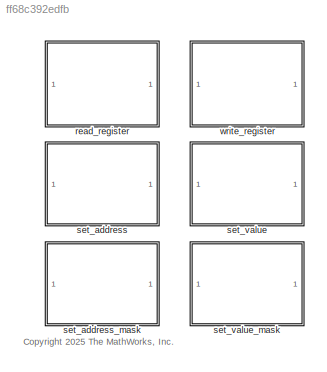
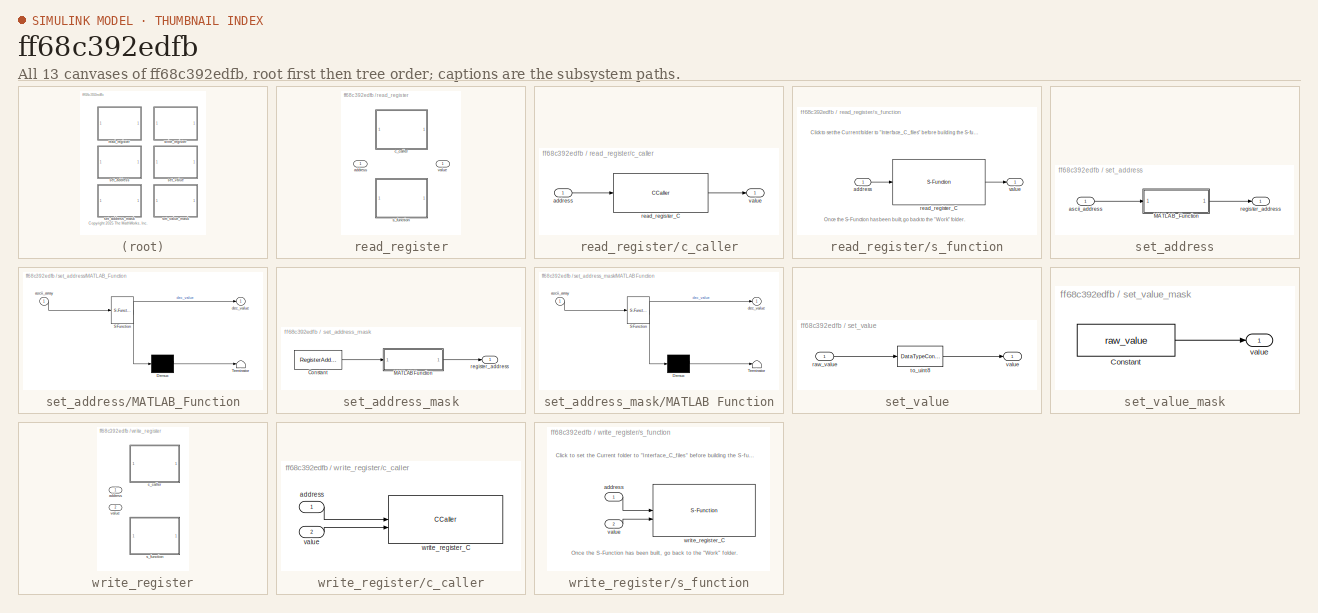
[diagram: thumbnail index - all 13 canvases of the model, root first then tree order]
MODEL slx_ff68c392edfb
KIND library
CONFIG AbsTol = auto
CONFIG EnableMultiTasking = off
CONFIG FixedStep = auto
CONFIG MaxStep = auto
CONFIG MinStep = auto
CONFIG RelTol = 1e-3
CONFIG SampleTimeConstraint = Unconstrained
CONFIG SolverName = VariableStepAuto
CONFIG StartTime = 0.0
CONFIG StopTime = 10.0
BLOCK [SubSystem] read_register
  Variant = on
  VariantControl = Variant1
BLOCK [Outport] read_register/ value
  VectorParamsAs1DForOutWhenUnconnected = off
BLOCK [Inport] read_register/address 
BLOCK [SubSystem] read_register/c_caller
  VariantControl = SRC
BLOCK [Inport] read_register/c_caller/address
BLOCK [CCaller] read_register/c_caller/read_register_C
  FunctionName = read_register
  PortSpecificationStruct = %)30     .    R ,   8    (     @         %    "     (    !     0         %  0 "0    $    _    07)G3F%M90  4&]R=$YA;64 4V-O<&4     26YD97@     5'EP90      4VEZ90      27-';&]B86P   X    P    !@    @    $          4    (     0    ,    !         !   P!O=70 #@   #     &    "     0         !0    @    !     P    $         $  # &]U=  .    .     8    (    !          %    "     $    &     0         0    !@...<+904ch>
BLOCK [Outport] read_register/c_caller/value
  VectorParamsAs1DForOutWhenUnconnected = off
BLOCK [SubSystem] read_register/s_function
  VariantControl = MEX
BLOCK [Inport] read_register/s_function/address
BLOCK [S-Function] read_register/s_function/read_register_C
  CopyFcn = set_param(gcbh,'LinkStatus','none')
  EnableBusSupport = off
  FunctionName = read_register
  InitFcn = try, set_param(gcb,'FunctionName','read_register'), end
  OpenFcn = sfunctionwizard(gcbh)
  PreSaveFcn = try, set_param(gcb,'FunctionName','read_register'), end
  SFcnIsStateOwnerBlock = off
  SFunctionDeploymentMode = off
  SFunctionModules = read_register_wrapper.c ParkingMeterMemory
BLOCK [Outport] read_register/s_function/value
  VectorParamsAs1DForOutWhenUnconnected = off
BLOCK [SubSystem] set_address
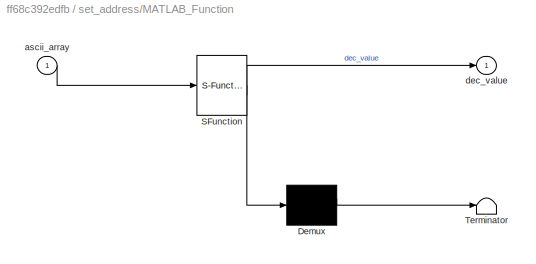
BLOCK [SubSystem] set_address/MATLAB_Function
  ErrorFcn = Stateflow.Translate.translate
  PermitHierarchicalResolution = ExplicitOnly
  SFBlockType = MATLAB Function
  TreatAsAtomicUnit = on
BLOCK [Demux] set_address/MATLAB_Function/ Demux 
  Outputs = 1
BLOCK [S-Function] set_address/MATLAB_Function/ SFunction 
  EnableBusSupport = off
  FunctionName = sf_sfun
  PortCounts = [1 2]
  SFcnIsStateOwnerBlock = off
  SFunctionDeploymentMode = off
  Tag = Stateflow S-Function 3
BLOCK [Terminator] set_address/MATLAB_Function/ Terminator 
BLOCK [Inport] set_address/MATLAB_Function/ascii_array
BLOCK [Outport] set_address/MATLAB_Function/dec_value
  VectorParamsAs1DForOutWhenUnconnected = off
BLOCK [Inport] set_address/ascii_address
  OutDataTypeStr = uint8
BLOCK [Outport] set_address/register_address
  VectorParamsAs1DForOutWhenUnconnected = off
BLOCK [SubSystem] set_address_mask
BLOCK [Constant] set_address_mask/Constant
  OutDataTypeStr = uint8
  Value = RegisterAddress
  VectorParams1D = off
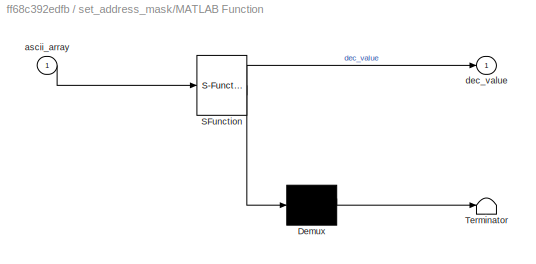
BLOCK [SubSystem] set_address_mask/MATLAB Function
  ErrorFcn = Stateflow.Translate.translate
  PermitHierarchicalResolution = ExplicitOnly
  SFBlockType = MATLAB Function
  TreatAsAtomicUnit = on
BLOCK [Demux] set_address_mask/MATLAB Function/ Demux 
  Outputs = 1
BLOCK [S-Function] set_address_mask/MATLAB Function/ SFunction 
  EnableBusSupport = off
  FunctionName = sf_sfun
  PortCounts = [1 2]
  SFcnIsStateOwnerBlock = off
  SFunctionDeploymentMode = off
  Tag = Stateflow S-Function 1
BLOCK [Terminator] set_address_mask/MATLAB Function/ Terminator 
BLOCK [Inport] set_address_mask/MATLAB Function/ascii_array
BLOCK [Outport] set_address_mask/MATLAB Function/dec_value
  VectorParamsAs1DForOutWhenUnconnected = off
BLOCK [Outport] set_address_mask/register_address
  VectorParamsAs1DForOutWhenUnconnected = off
BLOCK [SubSystem] set_value
BLOCK [Inport] set_value/raw_value
BLOCK [DataTypeConversion] set_value/to_uint8
  OutDataTypeStr = uint8
  OutMax = 255
  OutMin = 0
  RndMeth = Floor
  SaturateOnIntegerOverflow = off
BLOCK [Outport] set_value/value
  VectorParamsAs1DForOutWhenUnconnected = off
BLOCK [SubSystem] set_value_mask
BLOCK [Constant] set_value_mask/Constant
  OutDataTypeStr = uint8
  OutMax = 255
  OutMin = 0
  Value = raw_value
BLOCK [Outport] set_value_mask/value
  VectorParamsAs1DForOutWhenUnconnected = off
BLOCK [SubSystem] write_register
  LabelModeActiveChoice = SRC
  Variant = on
  VariantControl = Variant1
  VariantControlMode = label
BLOCK [Inport] write_register/address 
BLOCK [SubSystem] write_register/c_caller
  VariantControl = SRC
BLOCK [Inport] write_register/c_caller/address 
BLOCK [Inport] write_register/c_caller/value 
  Port = 2
BLOCK [CCaller] write_register/c_caller/write_register_C
  FunctionName = write_register
  PortSpecificationStruct = %)30     .    V ,   8    (     @         %    "     (    !     0         %  0 "0    $    _    07)G3F%M90  4&]R=$YA;64 4V-O<&4     26YD97@     5'EP90      4VEZ90      27-';&]B86P   X    X    !@    @    $          4    (     0    <    !         !     '    861D<F5S<P .    .     8    (    !          %    "     $    '     0         0    !P   &%D9')E<W, #@   #@    &    "     0         !0    @    !    !0...<+925ch>
BLOCK [SubSystem] write_register/s_function
  VariantControl = MEX
BLOCK [Inport] write_register/s_function/address
BLOCK [Inport] write_register/s_function/value
  Port = 2
BLOCK [S-Function] write_register/s_function/write_register_C
  CopyFcn = set_param(gcbh,'LinkStatus','none')
  EnableBusSupport = off
  FunctionName = write_register
  InitFcn = try, set_param(gcb,'FunctionName','write_register'), end
  OpenFcn = sfunctionwizard(gcbh)
  PreSaveFcn = try, set_param(gcb,'FunctionName','write_register'), end
  SFcnIsStateOwnerBlock = off
  SFunctionDeploymentMode = off
  SFunctionModules = write_register_wrapper.c ParkingMeterMemory
BLOCK [Inport] write_register/value 
  Port = 2
ANNOTATION (root): <copyright redacted>
ANNOTATION read_register/s_function: Click to set the Current folder to "Interface_C_files" before building the S-function in the block below.
ANNOTATION read_register/s_function: Once the S-Function has been built, go back to the "Work" folder.
ANNOTATION write_register/s_function: Click to set the Current folder to "Interface_C_files" before building the S-function in the block below.
ANNOTATION write_register/s_function: Once the S-Function has been built, go back to the "Work" folder.
LINE read_register/c_caller/address:1 -> read_register/c_caller/read_register_C:1
LINE read_register/c_caller/read_register_C:1 -> read_register/c_caller/value:1
LINE read_register/s_function/address:1 -> read_register/s_function/read_register_C:1
LINE read_register/s_function/read_register_C:1 -> read_register/s_function/value:1
LINE set_address/MATLAB_Function:1 -> set_address/register_address:1
LINE set_address/ascii_address:1 -> set_address/MATLAB_Function:1
LINE set_address_mask/Constant:1 -> set_address_mask/MATLAB Function:1
LINE set_address_mask/MATLAB Function:1 -> set_address_mask/register_address:1
LINE set_value/raw_value:1 -> set_value/to_uint8:1
LINE set_value/to_uint8:1 -> set_value/value:1
LINE set_value_mask/Constant:1 -> set_value_mask/value:1
LINE write_register/c_caller/address :1 -> write_register/c_caller/write_register_C:1
LINE write_register/c_caller/value :1 -> write_register/c_caller/write_register_C:2
LINE write_register/s_function/address:1 -> write_register/s_function/write_register_C:1
LINE write_register/s_function/value:1 -> write_register/s_function/write_register_C:2
CHART set_address/MATLAB_Function states=1 transitions=1
  STATE_LABEL 'eML_blk_kernel()'
  STATE_LABEL "SCRIPT:\nfunction dec_value  = char2dec(ascii_array)\n%%%%%%%%%%%%%%%%%%%%%%%%%%%%%%%%%%%%%%%%%%%%%%%%%%%%%%%%%%%%%%%%%%%%%%%%%%%%%%%%\n% Function char2dec()\n% Goal  : Convert a number encoded in binary or hexadecimal base to decimal\n% IN    : - char_sequence: char representation of the encoded value with the\n%           prefix for the encoding format: '0b' = binary and '0x' = hexadecimal\n% IN/OUT: -...<+1399ch>"
CHART set_address_mask/MATLAB Function states=1 transitions=1
  STATE_LABEL 'eML_blk_kernel()'
  STATE_LABEL "SCRIPT:\nfunction dec_value  = char2dec(ascii_array)\n%%%%%%%%%%%%%%%%%%%%%%%%%%%%%%%%%%%%%%%%%%%%%%%%%%%%%%%%%%%%%%%%%%%%%%%%%%%%%%%%\n% Function char2dec()\n% Goal  : Convert a number encoded in binary or hexadecimal base to decimal\n% IN    : - char_sequence: char representation of the encoded value with the\n%           prefix for the encoding format: '0b' = binary and '0x' = hexadecimal\n% IN/OUT: -...<+1398ch>"
CHART  states=0 transitions=0
CHART  states=0 transitions=0
